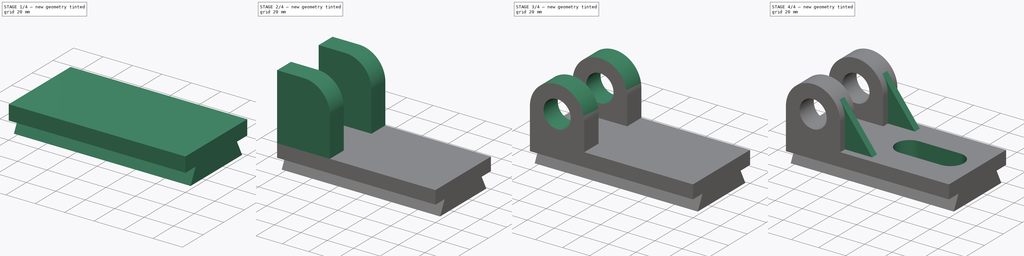
[diagram: build sequence overview — one tinted view per stage of 4, left to right]
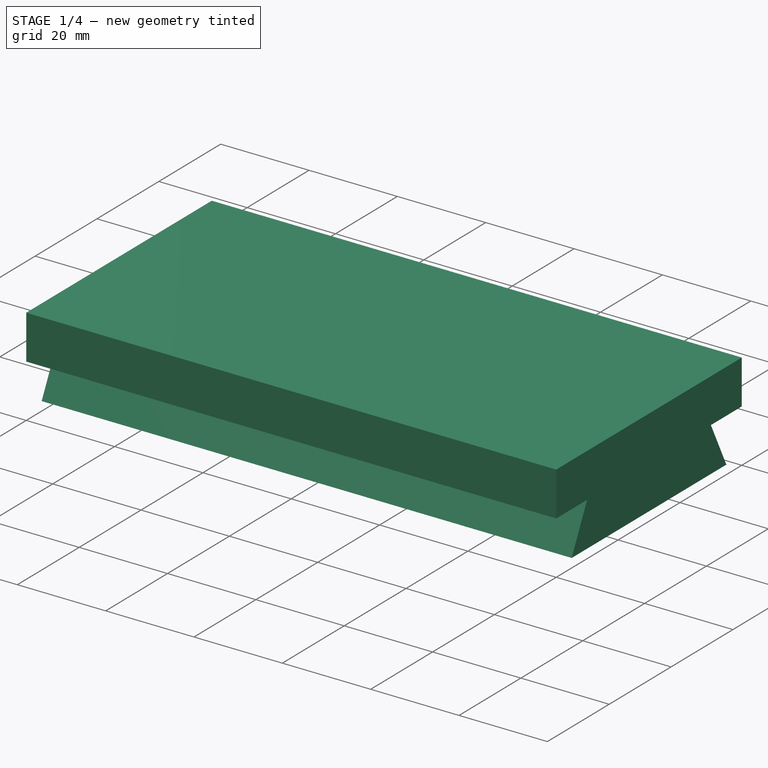
[diagram: stage 1 of 4 — iso view after this stage's code; geometry added in this stage tinted green]
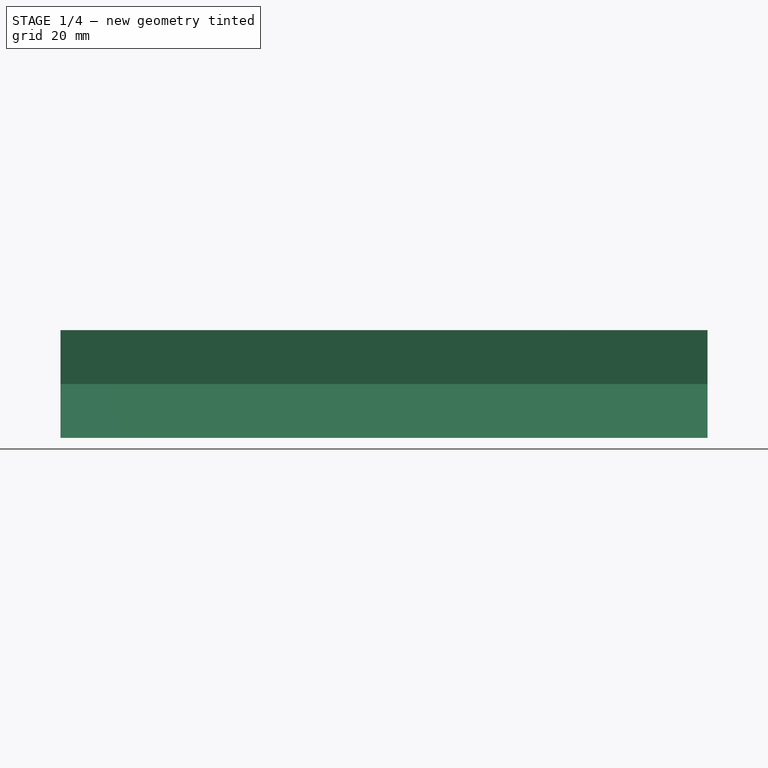
[diagram: stage 1 of 4 — front view after this stage's code; geometry added in this stage tinted green]
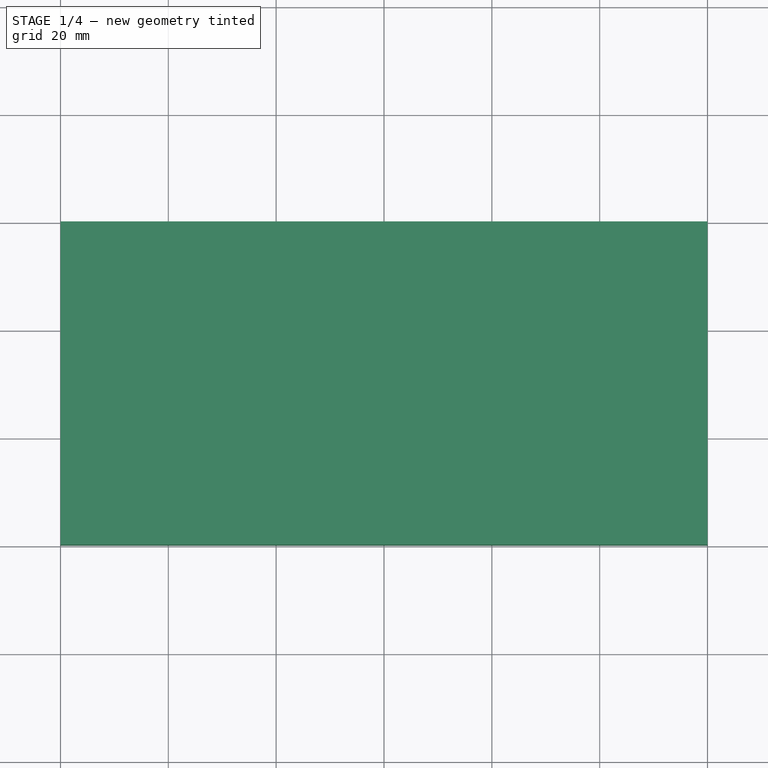
[diagram: stage 1 of 4 — top view after this stage's code; geometry added in this stage tinted green]
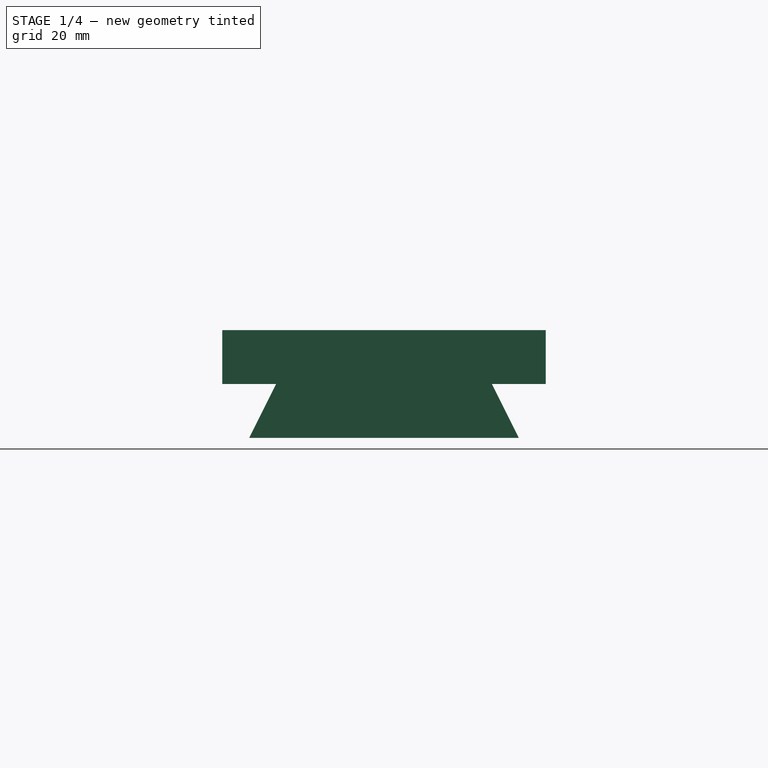
[diagram: stage 1 of 4 — right view after this stage's code; geometry added in this stage tinted green]
FCSTD DOCUMENT  (FreeCAD 0.18R4 (GitTag))
Label: Lab 7 q2
License: All rights reserved
LicenseURL: http://en.wikipedia.org/wiki/All_rights_reserved
objects: Sketcher::SketchObject×10, PartDesign::Pad×5, PartDesign::Pocket×4, PartDesign::Fillet×2, PartDesign::Hole×1, PartDesign::Body×1
note: 33 computed .brp shape members not serialized (recipe doc carries the construction recipe); baked Part::Feature solids carry a one-line shape summary decoded from their .brp

FEATURE [Sketcher::SketchObject] Sketch
  MapMode = 5
  Support = -> [XY_Plane]
  sketch-geometry (4):
    g0: LineSegment StartX=0 StartY=0 StartZ=0 EndX=120 EndY=0 EndZ=0
    g1: LineSegment StartX=120 StartY=0 StartZ=0 EndX=120 EndY=60 EndZ=0
    g2: LineSegment StartX=120 StartY=60 StartZ=0 EndX=0 EndY=60 EndZ=0
    g3: LineSegment StartX=0 StartY=60 StartZ=0 EndX=0 EndY=0 EndZ=0
  constraints (11):
    c: Coincident(g0,g1)
    c: Coincident(g1,g2)
    c: Coincident(g2,g3)
    c: Coincident(g3,g0)
    c: Horizontal(g0)
    c: Horizontal(g2)
    c: Vertical(g1)
    c: Vertical(g3)
    c: Coincident(g0,g-1)
    c: Distance(g3) = 60
    c: Distance(g0) = 120
FEATURE [PartDesign::Pad] Pad
  Length = 10
  Length2 = 100
  Profile = -> Sketch
  Type = 0
FEATURE [Sketcher::SketchObject] Sketch001
  MapMode = 5
  Placement = pos=(0,0,0) rot=(1,0,0;3.14159rad)
  Support = -> [Pad]
  sketch-geometry (4):
    g0: LineSegment StartX=0 StartY=-5 StartZ=0 EndX=120 EndY=-5 EndZ=0
    g1: LineSegment StartX=120 StartY=-5 StartZ=0 EndX=120 EndY=-55 EndZ=0
    g2: LineSegment StartX=120 StartY=-55 StartZ=0 EndX=0 EndY=-55 EndZ=0
    g3: LineSegment StartX=0 StartY=-55 StartZ=0 EndX=0 EndY=-5 EndZ=0
  constraints (12):
    c: Coincident(g0,g1)
    c: Coincident(g1,g2)
    c: Coincident(g2,g3)
    c: Coincident(g3,g0)
    c: Horizontal(g0)
    c: Horizontal(g2)
    c: Vertical(g1)
    c: Vertical(g3)
    c: DistanceX(g-1,g0) = 0
    c: DistanceX(g-1,g0) = 120
    c: DistanceY(g0,g-1) = 5
    c: DistanceY(g2,g-1) = 55
FEATURE [PartDesign::Pad] Pad001
  BaseFeature = -> Pad
  Length = 10
  Length2 = 100
  Profile = -> Sketch001
  Type = 0
FEATURE [Sketcher::SketchObject] Sketch002
  MapMode = 5
  Placement = pos=(120,0,0) rot=(0.57735,0.57735,0.57735;2.0944rad)
  Support = -> [Pad001]
  sketch-geometry (6):
    g0: LineSegment StartX=5 StartY=-10 StartZ=0 EndX=10 EndY=0 EndZ=0
    g1: LineSegment StartX=10 StartY=0 StartZ=0 EndX=5 EndY=0 EndZ=0
    g2: LineSegment StartX=5 StartY=0 StartZ=0 EndX=5 EndY=-10 EndZ=0
    g3: LineSegment StartX=50 StartY=0 StartZ=0 EndX=55 EndY=-10 EndZ=0
    g4: LineSegment StartX=55 StartY=3e-16 StartZ=0 EndX=55 EndY=-10 EndZ=0
    g5: LineSegment StartX=50 StartY=0 StartZ=0 EndX=55 EndY=3e-16 EndZ=0
  constraints (18):
    c: DistanceX(g-1,g0) = 5
    c: DistanceX(g-1,g0) = 10
    c: DistanceY(g0,g-1) = 10
    c: DistanceY(g0,g-1) = 0
    c: Coincident(g1,g0)
    c: Horizontal(g1)
    c: Distance(g1) = 5
    c: Coincident(g2,g1)
    c: Coincident(g2,g0)
    c: DistanceX(g0,g3) = 50
    c: DistanceX(g0,g3) = 40
    c: DistanceY(g0,g3) = 0
    c: DistanceY(g3,g0) = 0
    c: Coincident(g4,g3)
    c: Vertical(g4)
    c: Distance(g4) = 10
    c: Coincident(g5,g3)
    c: Coincident(g5,g4)
FEATURE [PartDesign::Pocket] Pocket
  BaseFeature = -> Pad001
  Length = 120
  Length2 = 100
  Profile = -> Sketch002
  Type = 0
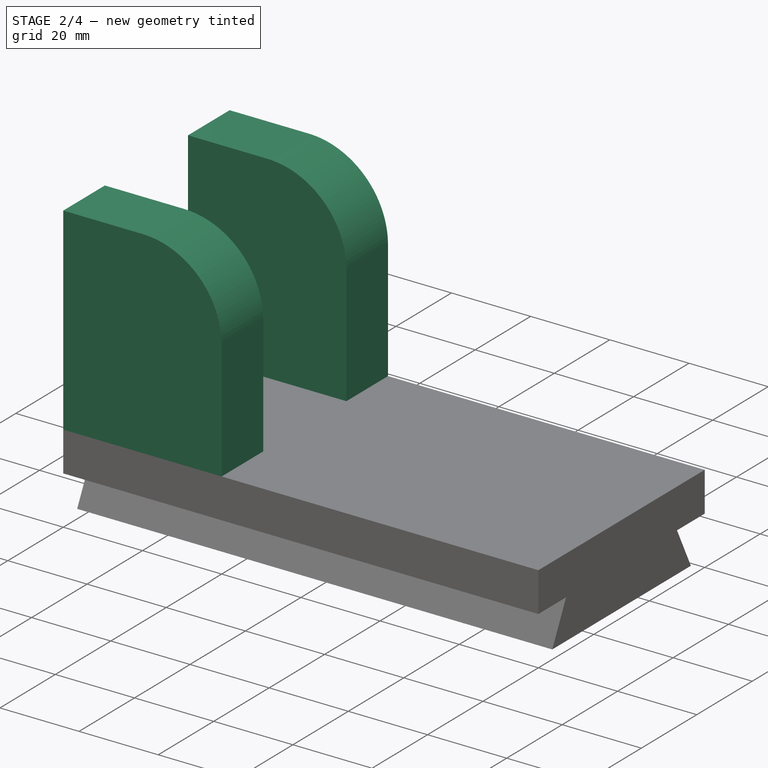
[diagram: stage 2 of 4 — iso view after this stage's code; geometry added in this stage tinted green]
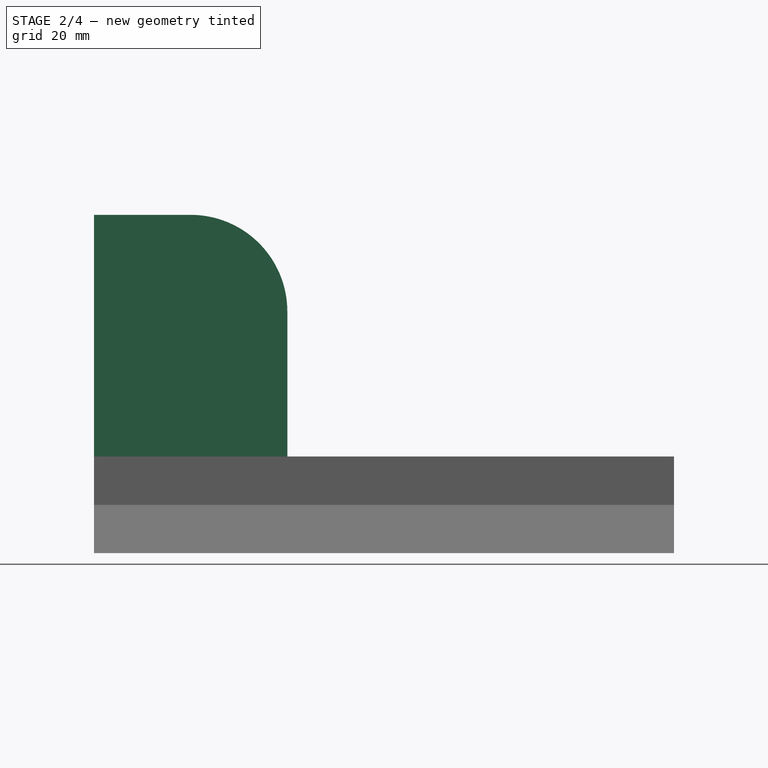
[diagram: stage 2 of 4 — front view after this stage's code; geometry added in this stage tinted green]
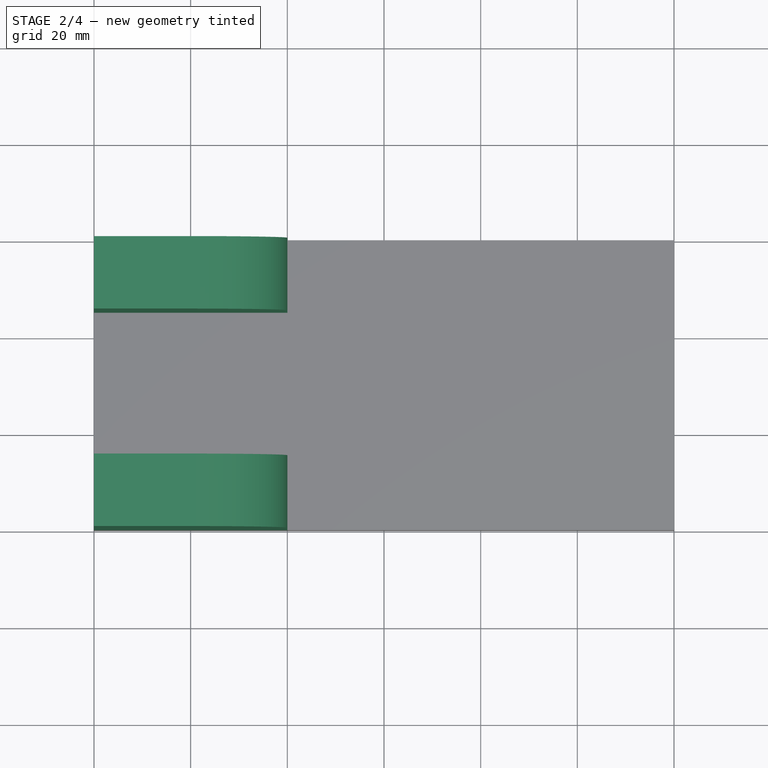
[diagram: stage 2 of 4 — top view after this stage's code; geometry added in this stage tinted green]
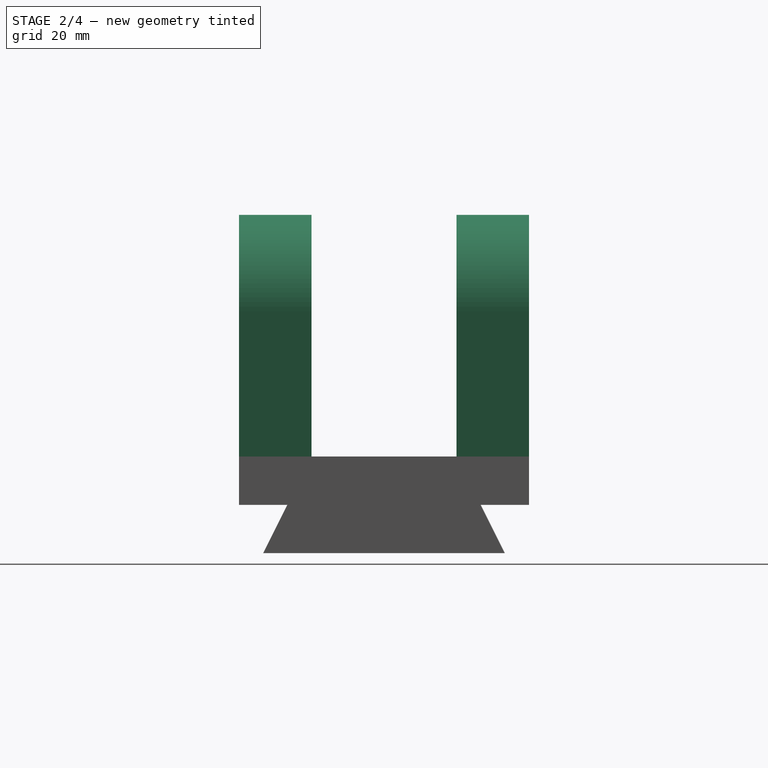
[diagram: stage 2 of 4 — right view after this stage's code; geometry added in this stage tinted green]
FEATURE [Sketcher::SketchObject] Sketch003
  MapMode = 5
  Placement = pos=(0,0,10) rot=(0,0,1;0rad)
  Support = -> [Pocket]
  sketch-geometry (8):
    g0: LineSegment StartX=0 StartY=0 StartZ=0 EndX=40 EndY=0 EndZ=0
    g1: LineSegment StartX=40 StartY=0 StartZ=0 EndX=40 EndY=15 EndZ=0
    g2: LineSegment StartX=40 StartY=15 StartZ=0 EndX=0 EndY=15 EndZ=0
    g3: LineSegment StartX=0 StartY=15 StartZ=0 EndX=0 EndY=0 EndZ=0
    g4: LineSegment StartX=0 StartY=45 StartZ=0 EndX=40 EndY=45 EndZ=0
    g5: LineSegment StartX=40 StartY=45 StartZ=0 EndX=40 EndY=60 EndZ=0
    g6: LineSegment StartX=40 StartY=60 StartZ=0 EndX=0 EndY=60 EndZ=0
    g7: LineSegment StartX=0 StartY=60 StartZ=0 EndX=0 EndY=45 EndZ=0
  constraints (23):
    c: Coincident(g0,g1)
    c: Coincident(g1,g2)
    c: Coincident(g2,g3)
    c: Coincident(g3,g0)
    c: Horizontal(g0)
    c: Horizontal(g2)
    c: Vertical(g1)
    c: Vertical(g3)
    c: Coincident(g4,g5)
    c: Coincident(g5,g6)
    c: Coincident(g6,g7)
    c: Coincident(g7,g4)
    c: Horizontal(g4)
    c: Horizontal(g6)
    c: Vertical(g5)
    c: Vertical(g7)
    c: Coincident(g0,g-1)
    c: Distance(g0) = 40
    c: Distance(g1) = 15
    c: Distance(g4) = 40
    c: Distance(g5) = 15
    c: DistanceY(g0,g6) = 60
    c: DistanceX(g0,g4) = 0
FEATURE [PartDesign::Pad] Pad002
  BaseFeature = -> Pocket
  Length = 50
  Length2 = 100
  Profile = -> Sketch003
  Type = 0
FEATURE [PartDesign::Fillet] Fillet
  Base = -> Pad002 [Edge48]
  BaseFeature = -> Pad002
  Radius = 20
FEATURE [PartDesign::Fillet] Fillet001
  Base = -> Fillet [Edge43]
  BaseFeature = -> Fillet
  Radius = 20
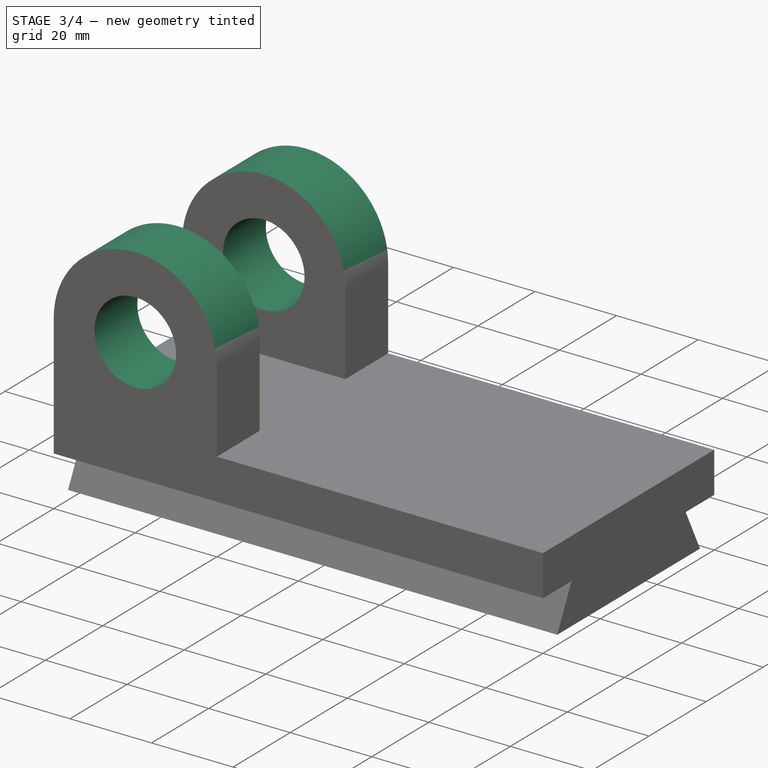
[diagram: stage 3 of 4 — iso view after this stage's code; geometry added in this stage tinted green]
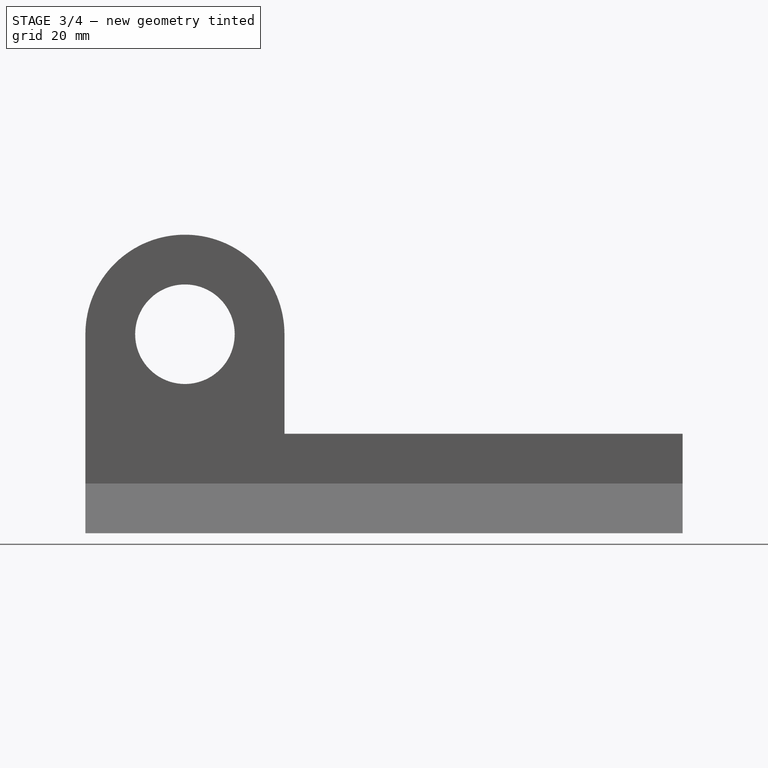
[diagram: stage 3 of 4 — front view after this stage's code; geometry added in this stage tinted green]
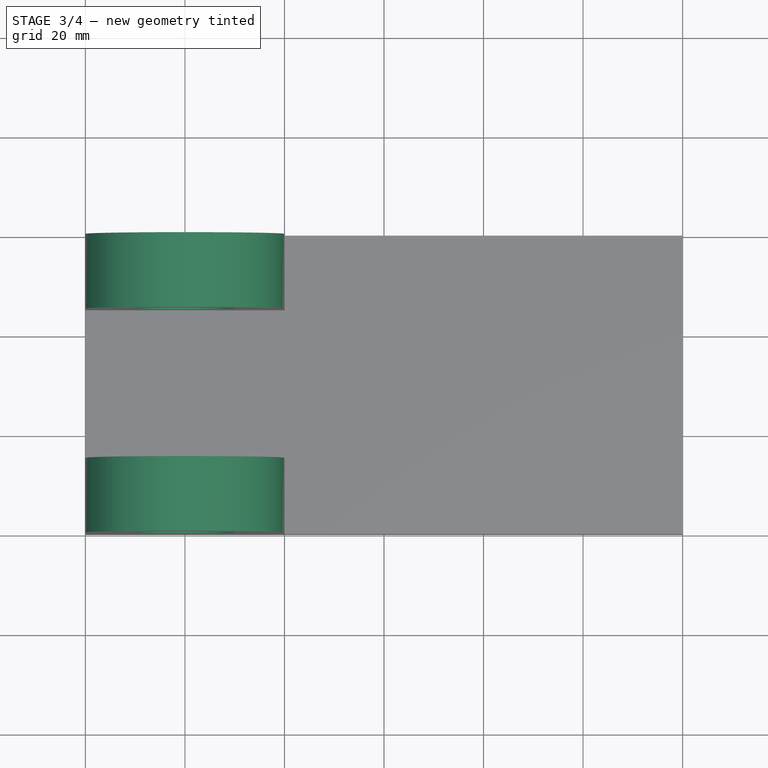
[diagram: stage 3 of 4 — top view after this stage's code; geometry added in this stage tinted green]
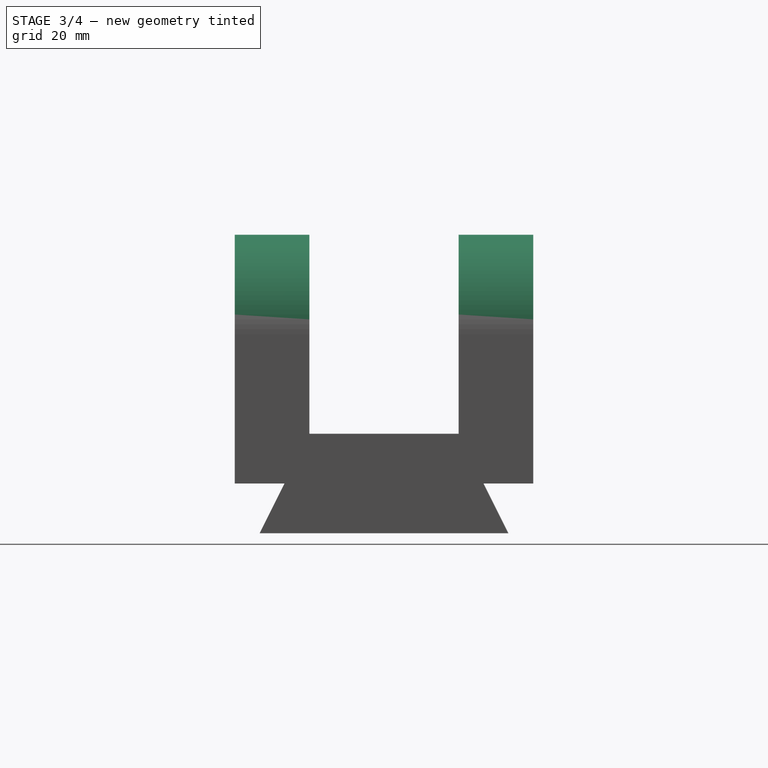
[diagram: stage 3 of 4 — right view after this stage's code; geometry added in this stage tinted green]
FEATURE [Sketcher::SketchObject] Sketch004
  MapMode = 5
  Placement = pos=(0,0,0) rot=(1,0,0;1.5708rad)
  Support = -> [Fillet001]
  sketch-geometry (3):
    g0: ArcOfCircle CenterX=20 CenterY=40 CenterZ=0 NormalX=0 NormalY=0 NormalZ=1 AngleXU=0 Radius=20 StartAngle=1.5708 EndAngle=3.14159
    g1: LineSegment StartX=-1e-16 StartY=60 StartZ=0 EndX=-1e-16 EndY=40 EndZ=0
    g2: LineSegment StartX=3e-16 StartY=60 StartZ=0 EndX=20 EndY=60 EndZ=0
  constraints (11):
    c: DistanceY(g-1,g0) = 40
    c: DistanceX(g-1,g0) = 20
    c: Radius(g0) = 20
    c: DistanceX(g0,g0) = 0
    c: DistanceY(g0,g0) = 0
    c: Coincident(g1,g0)
    c: Coincident(g2,g0)
    c: Vertical(g1)
    c: Horizontal(g2)
    c: Distance(g2) = 20
    c: Distance(g1) = 20
FEATURE [PartDesign::Pocket] Pocket001
  BaseFeature = -> Fillet001
  Length = 60
  Length2 = 100
  Profile = -> Sketch004
  Type = 0
FEATURE [Sketcher::SketchObject] Sketch005
  MapMode = 5
  Placement = pos=(0,0,0) rot=(1,0,0;1.5708rad)
  Support = -> [Pocket001]
  sketch-geometry (4):
    g0: ArcOfCircle CenterX=20 CenterY=30 CenterZ=0 NormalX=0 NormalY=0 NormalZ=1 AngleXU=0 Radius=20 StartAngle=1e-16 EndAngle=3.14159
    g1: LineSegment StartX=8.5592e-11 StartY=40 StartZ=0 EndX=8.5592e-11 EndY=30 EndZ=0
    g2: LineSegment StartX=40 StartY=40 StartZ=0 EndX=40 EndY=30 EndZ=0
    g3: ArcOfCircle CenterX=20 CenterY=40.0001 CenterZ=0 NormalX=0 NormalY=0 NormalZ=1 AngleXU=0 Radius=20 StartAngle=6.28318 EndAngle=9.42478
  constraints (14):
    c: Radius(g0) = 20
    c: DistanceY(g-1,g0) = 30
    c: DistanceY(g-1,g0) = 30
    c: DistanceY(g-1,g0) = 30
    c: DistanceX(g-1,g0) = 0
    c: Coincident(g1,g0)
    c: Coincident(g2,g0)
    c: Vertical(g2)
    c: Vertical(g1)
    c: Distance(g2) = 10
    c: Distance(g1) = 10
    c: Coincident(g3,g1)
    c: Coincident(g3,g2)
    c: Radius(g3) = 20
FEATURE [PartDesign::Pocket] Pocket002
  BaseFeature = -> Pocket001
  Length = 60
  Length2 = 100
  Profile = -> Sketch005
  Type = 0
FEATURE [Sketcher::SketchObject] Sketch006
  MapMode = 5
  Placement = pos=(0,0,0) rot=(1,0,0;1.5708rad)
  Support = -> [Pocket002]
  sketch-geometry (1):
    g0: Circle CenterX=20 CenterY=30 CenterZ=0 NormalX=0 NormalY=0 NormalZ=1 AngleXU=0 Radius=10
  constraints (3):
    c: DistanceX(g-1,g0) = 20
    c: DistanceY(g-1,g0) = 30
    c: Radius(g0) = 10
FEATURE [PartDesign::Hole] Hole
  BaseFeature = -> Pocket002
  Depth = 60
  DepthType = 0
  Diameter = 20
  DrillPoint = 0
  DrillPointAngle = 118
  HoleCutCountersinkAngle = 90
  HoleCutDepth = 0
  HoleCutDiameter = 0
  HoleCutType = 0
  ModelActualThread = false
  Profile = -> Sketch006
  Tapered = false
  TaperedAngle = 90
  ThreadAngle = 0
  ThreadClass = 0
  ThreadCutOffInner = 0
  ThreadCutOffOuter = 0
  ThreadDirection = 0
  ThreadFit = 0
  ThreadPitch = 0
  ThreadSize = 0
  ThreadType = 0
  Threaded = false
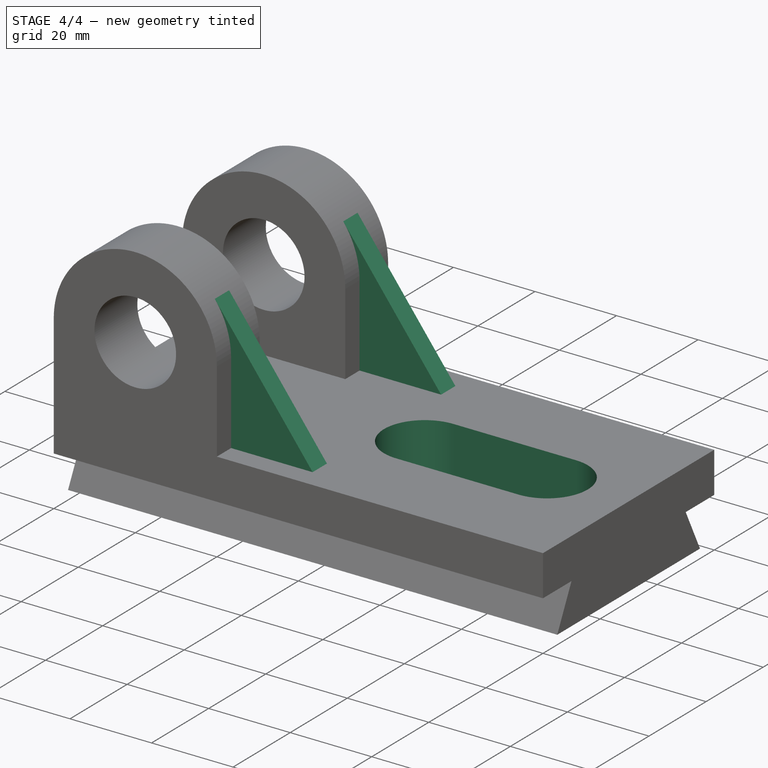
[diagram: stage 4 of 4 — iso view after this stage's code; geometry added in this stage tinted green]
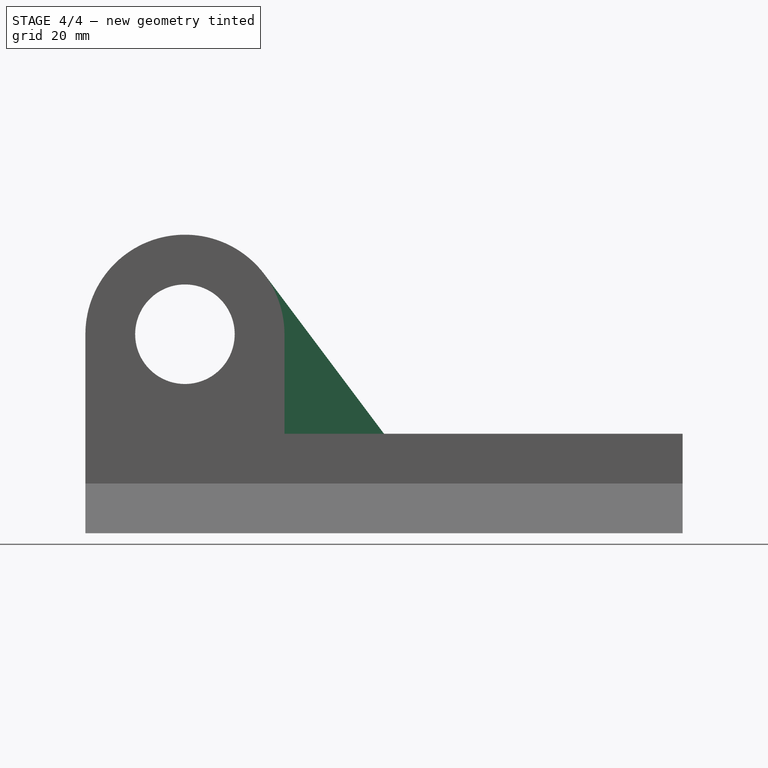
[diagram: stage 4 of 4 — front view after this stage's code; geometry added in this stage tinted green]
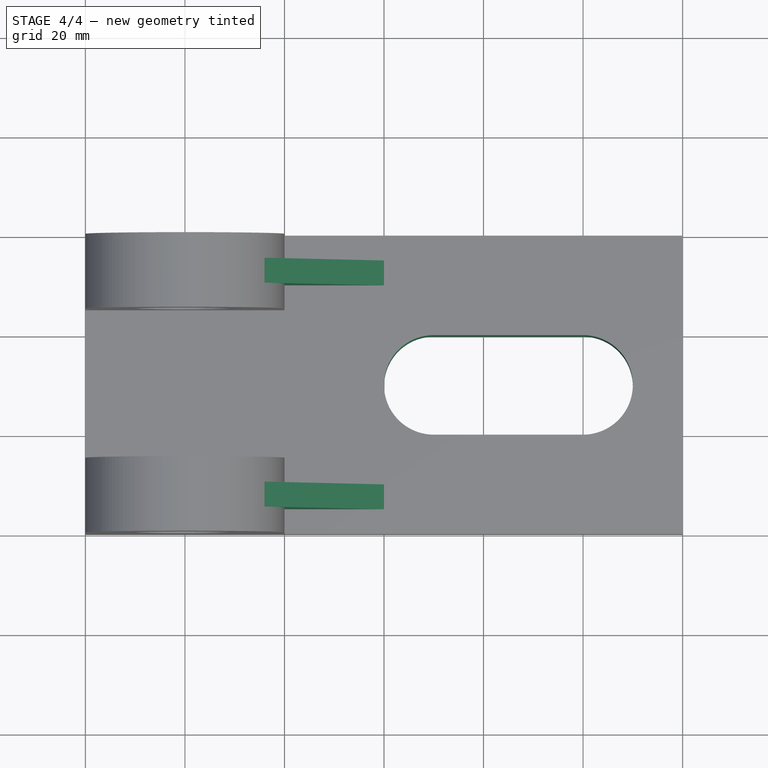
[diagram: stage 4 of 4 — top view after this stage's code; geometry added in this stage tinted green]
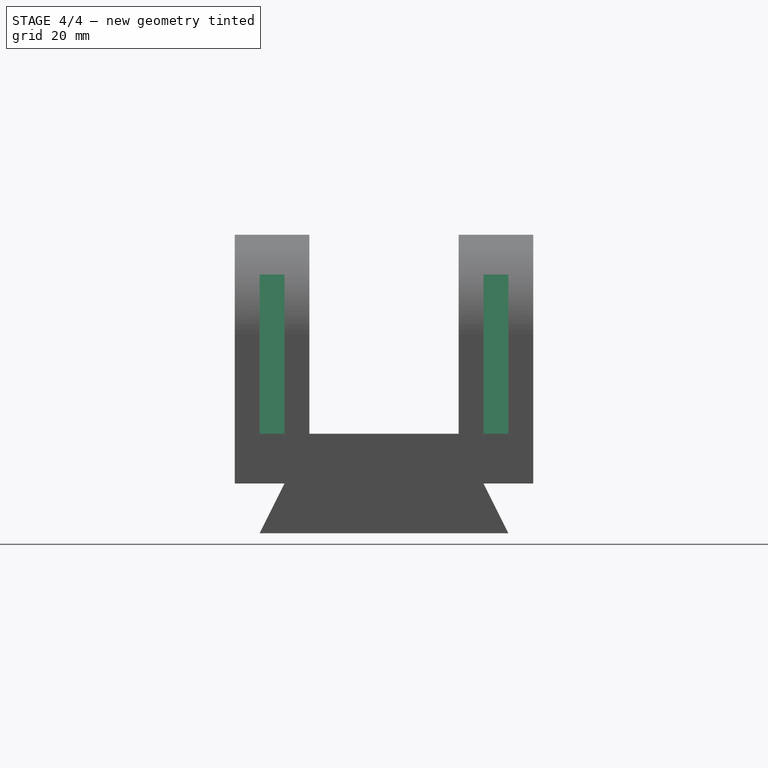
[diagram: stage 4 of 4 — right view after this stage's code; geometry added in this stage tinted green]
FEATURE [Sketcher::SketchObject] Sketch007
  MapMode = 5
  Placement = pos=(0,0,10) rot=(0,0,1;0rad)
  Support = -> [Hole]
  sketch-geometry (4):
    g0: ArcOfCircle CenterX=70 CenterY=30 CenterZ=0 NormalX=0 NormalY=0 NormalZ=1 AngleXU=0 Radius=10 StartAngle=1.5708 EndAngle=4.71239
    g1: ArcOfCircle CenterX=100 CenterY=30 CenterZ=0 NormalX=0 NormalY=0 NormalZ=1 AngleXU=0 Radius=10 StartAngle=4.71239 EndAngle=7.85398
    g2: LineSegment StartX=70 StartY=40 StartZ=0 EndX=100 EndY=40 EndZ=0
    g3: LineSegment StartX=70 StartY=20 StartZ=0 EndX=100 EndY=20 EndZ=0
  constraints (14):
    c: Radius(g0) = 10
    c: Radius(g1) = 10
    c: DistanceX(g-1,g0) = 70
    c: DistanceX(g0,g0) = 0
    c: DistanceX(g0,g0) = 0
    c: Coincident(g2,g0)
    c: Coincident(g3,g0)
    c: Horizontal(g2)
    c: Horizontal(g3)
    c: DistanceY(g-1,g0) = 30
    c: Coincident(g1,g2)
    c: Coincident(g1,g3)
    c: Distance(g2) = 30
    c: Distance(g3) = 30
FEATURE [PartDesign::Pocket] Pocket003
  BaseFeature = -> Hole
  Length = 20
  Length2 = 100
  Profile = -> Sketch007
  Type = 0
FEATURE [Sketcher::SketchObject] Sketch008
  MapMode = 5
  Placement = pos=(0,5,-1.1e-15) rot=(1,0,0;1.5708rad)
  sketch-geometry (5):
    g0: LineSegment StartX=40 StartY=10 StartZ=0 EndX=60 EndY=10 EndZ=0
    g1: LineSegment StartX=36 StartY=42 StartZ=0 EndX=60 EndY=10 EndZ=0
    g2: ArcOfCircle CenterX=20 CenterY=30 CenterZ=0 NormalX=0 NormalY=0 NormalZ=1 AngleXU=0 Radius=20 StartAngle=0 EndAngle=0.643504
    g3: LineSegment StartX=40 StartY=10 StartZ=0 EndX=40 EndY=30 EndZ=0
    g4: LineSegment StartX=40 StartY=10 StartZ=0 EndX=60 EndY=10 EndZ=0
  constraints (16):
    c: Horizontal(g0)
    c: Distance(g0) = 20
    c: DistanceX(g-1,g0) = 40
    c: DistanceY(g-1,g0) = 10
    c: Coincident(g1,g0)
    c: Coincident(g1,g2)
    c: DistanceY(g2,g2) = 0
    c: DistanceX(g2,g2) = 20
    c: DistanceX(g-1,g2) = 20
    c: DistanceY(g-1,g2) = 30
    c: Coincident(g3,g2)
    c: Vertical(g3)
    c: Distance(g3) = 20
    c: Coincident(g4,g0)
    c: Coincident(g4,g0)
    c: Tangent(g1,g2)
FEATURE [PartDesign::Pad] Pad003
  BaseFeature = -> Pocket003
  Length = 5
  Length2 = 100
  Profile = -> Sketch008
  Reversed = true
  Type = 0
FEATURE [Sketcher::SketchObject] Sketch009
  MapMode = 5
  Placement = pos=(0,50,-1.1e-15) rot=(1,0,0;1.5708rad)
  sketch-geometry (4):
    g0: LineSegment StartX=40 StartY=10 StartZ=0 EndX=60 EndY=10 EndZ=0
    g1: LineSegment StartX=40 StartY=30 StartZ=0 EndX=40 EndY=10 EndZ=0
    g2: ArcOfCircle CenterX=20 CenterY=30 CenterZ=0 NormalX=0 NormalY=0 NormalZ=1 AngleXU=0 Radius=20 StartAngle=0 EndAngle=0.643504
    g3: LineSegment StartX=36 StartY=42 StartZ=0 EndX=60 EndY=10 EndZ=0
  constraints (13):
    c: DistanceY(g-1,g0) = 10
    c: DistanceX(g-1,g0) = 40
    c: Horizontal(g0)
    c: Distance(g0) = 20
    c: Coincident(g1,g0)
    c: Vertical(g1)
    c: Distance(g1) = 20
    c: DistanceX(g-1,g2) = 20
    c: DistanceY(g-1,g2) = 30
    c: Coincident(g2,g1)
    c: Coincident(g3,g2)
    c: Coincident(g3,g0)
    c: Tangent(g3,g2)
FEATURE [PartDesign::Pad] Pad004
  BaseFeature = -> Pad003
  Length = 5
  Length2 = 100
  Profile = -> Sketch009
  Reversed = true
  Type = 0
FEATURE [PartDesign::Body] Body
  Group = -> [Sketch,Pad,Sketch001,Pad001,Sketch002,Pocket,Sketch003,Pad002,Fillet,Fillet001,Sketch004,Pocket001,Sketch005,Pocket002,Sketch006,Hole,Sketch007,Pocket003,Sketch008,Pad003,Sketch009,Pad004]
  Origin = -> Origin
  Tip = -> Pad004
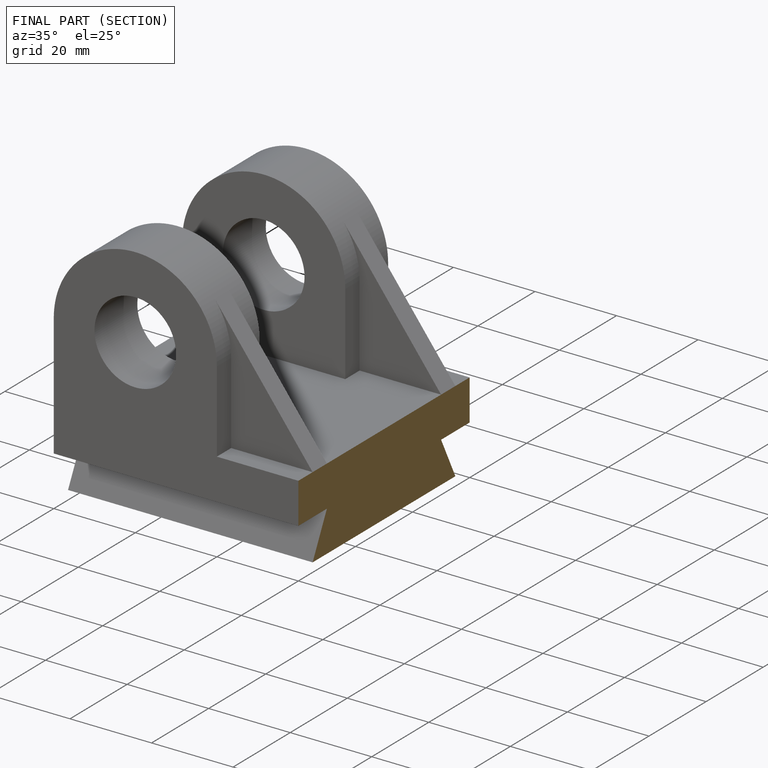
[diagram: finished part — half-section view (interior)]
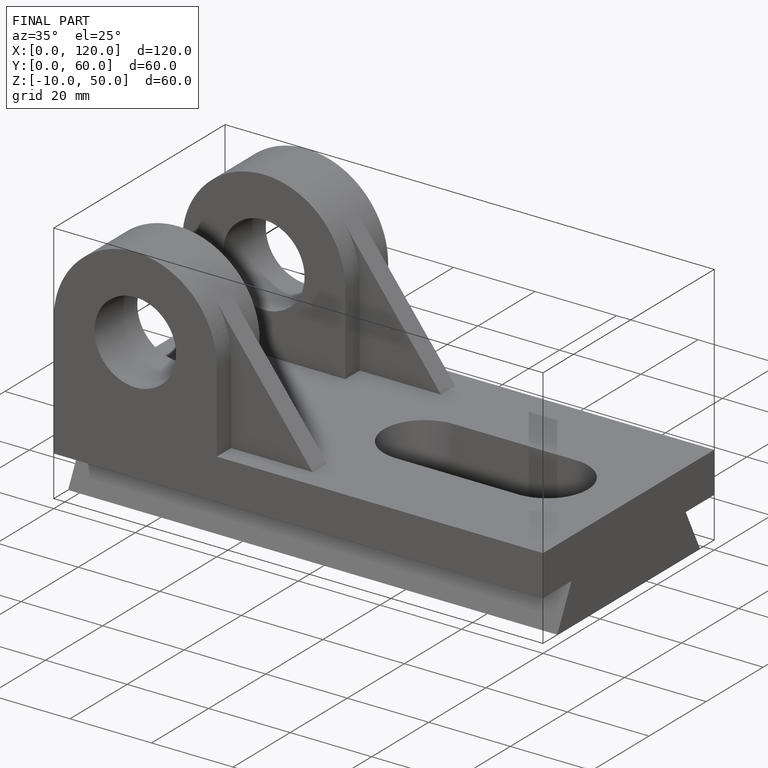
[diagram: finished part — iso view with bounding-box wireframe]
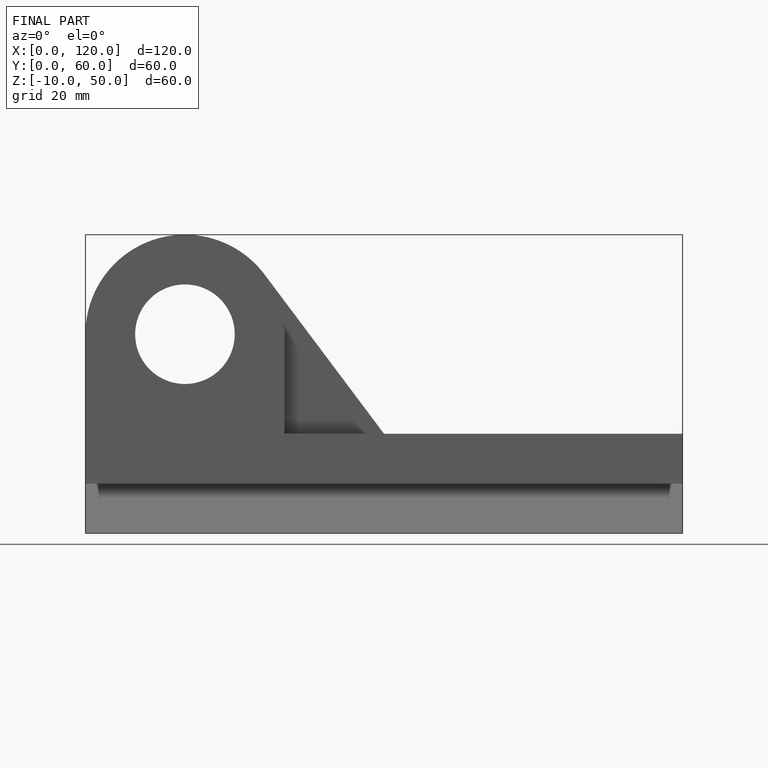
[diagram: finished part — front view with bounding-box wireframe]
